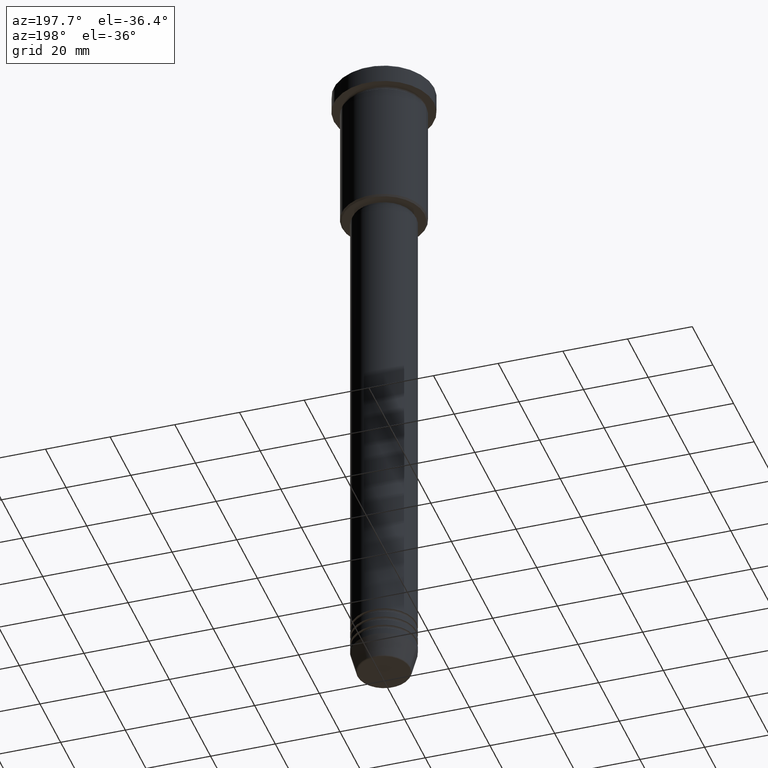
[diagram: clean part render]
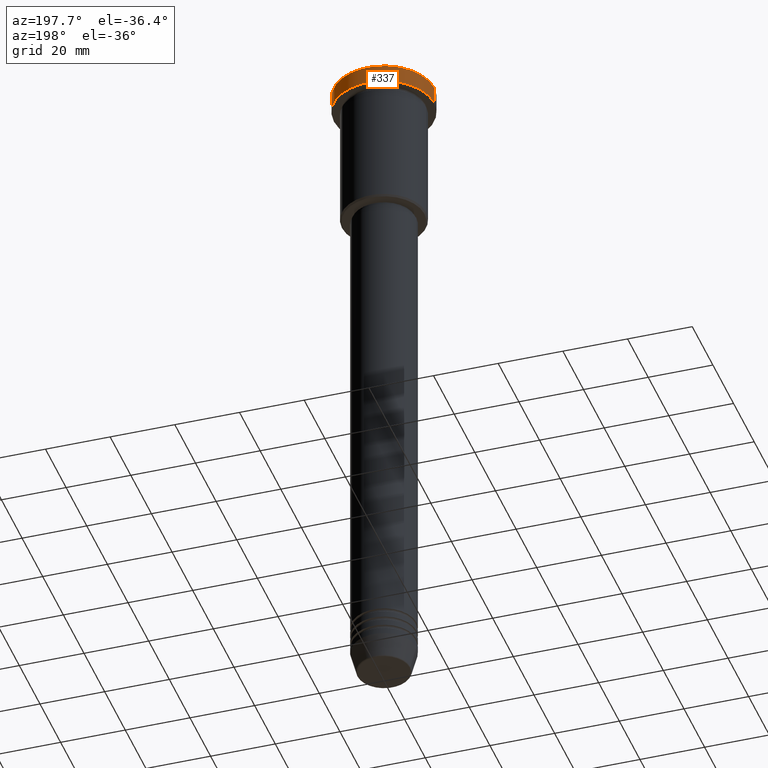
[diagram: same view with one face highlighted and labeled with its STEP entity id]
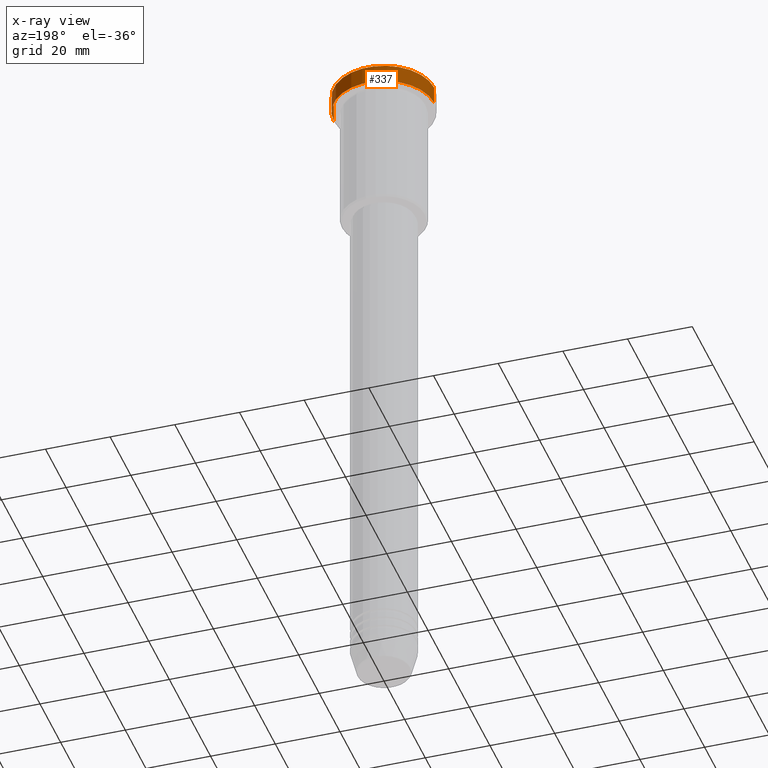
[diagram: x-ray of the same camera — body ghosted, the highlighted face saturated]
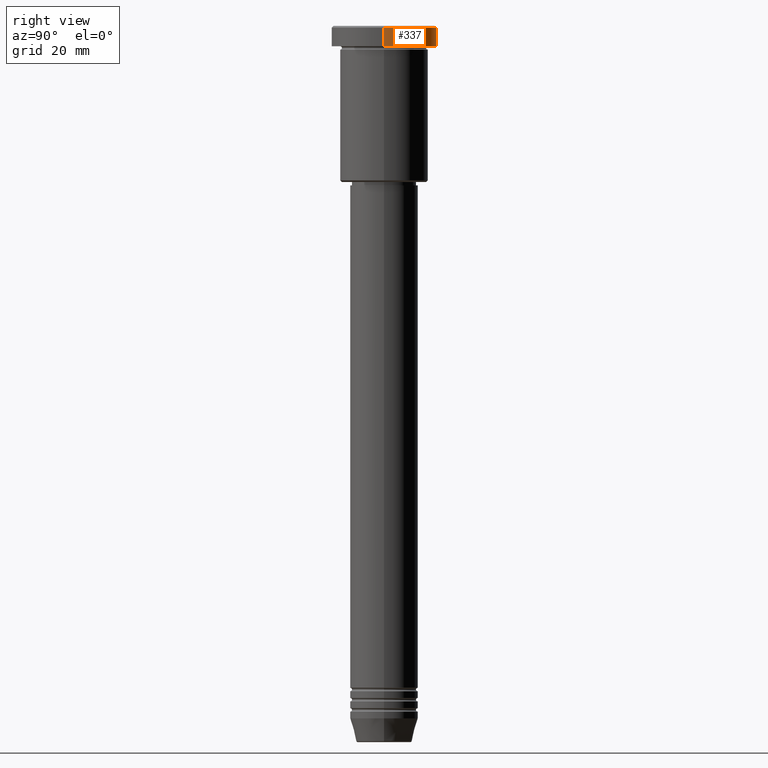
[diagram: same view with one face highlighted and labeled with its STEP entity id]
A machine part, auxiliary view. The second image highlights one B-rep face of the part: STEP entity #337.
The next image is the same camera in x-ray: the body ghosted, the highlighted face saturated — about 0% of this face is hidden behind the body in this view.
A second angle (right view) of the same face is appended — the face is thin or edge-on in the first view.
In plain terms, the highlighted cylindrical surface (partial cylindrical patch) has radius 15.5 mm, axis along (-0, -0, 1).
Its self-contained STEP definition (entity closure, byte-faithful):
#9 = ORIENTED_EDGE ( 'NONE', *, *, #800, .F. ) ;
#56 = DIRECTION ( 'NONE',  ( 1.000000000000000000, 0.000000000000000000, 0.000000000000000000 ) ) ;
#104 = CARTESIAN_POINT ( 'NONE',  ( 15.50000000000000000, 0.000000000000000000, 0.000000000000000000 ) ) ;
#156 = AXIS2_PLACEMENT_3D ( 'NONE', #864, #219, #1132 ) ;
#193 = AXIS2_PLACEMENT_3D ( 'NONE', #941, #317, #868 ) ;
#219 = DIRECTION ( 'NONE',  ( 0.000000000000000000, 0.000000000000000000, -1.000000000000000000 ) ) ;
#314 = EDGE_LOOP ( 'NONE', ( #942, #957, #751, #9 ) ) ;
#316 = CARTESIAN_POINT ( 'NONE',  ( 15.50000000000000000, 0.000000000000000000, -0.4999999999999848455 ) ) ;
#317 = DIRECTION ( 'NONE',  ( -0.000000000000000000, -0.000000000000000000, 1.000000000000000000 ) ) ;
#318 = VERTEX_POINT ( 'NONE', #737 ) ;
#324 = LINE ( 'NONE', #915, #332 ) ;
#332 = VECTOR ( 'NONE', #963, 1000.000000000000000 ) ;
#337 = ADVANCED_FACE ( 'NONE', ( #590 ), #763, .T. ) ;
#371 = CIRCLE ( 'NONE', #683, 15.50000000000000000 ) ;
#479 = EDGE_CURVE ( 'NONE', #740, #764, #625, .T. ) ;
#517 = CARTESIAN_POINT ( 'NONE',  ( 0.000000000000000000, 0.000000000000000000, -5.999999999999995559 ) ) ;
#572 = LINE ( 'NONE', #104, #815 ) ;
#590 = FACE_OUTER_BOUND ( 'NONE', #314, .T. ) ;
#625 = CIRCLE ( 'NONE', #156, 15.50000000000000000 ) ;
#640 = CARTESIAN_POINT ( 'NONE',  ( -15.50000000000000000, 1.898202538678397557E-15, -5.999999999999995559 ) ) ;
#683 = AXIS2_PLACEMENT_3D ( 'NONE', #517, #1092, #56 ) ;
#690 = VERTEX_POINT ( 'NONE', #640 ) ;
#737 = CARTESIAN_POINT ( 'NONE',  ( 15.50000000000000000, 0.000000000000000000, -5.999999999999995559 ) ) ;
#740 = VERTEX_POINT ( 'NONE', #1022 ) ;
#751 = ORIENTED_EDGE ( 'NONE', *, *, #479, .T. ) ;
#763 = CYLINDRICAL_SURFACE ( 'NONE', #193, 15.50000000000000000 ) ;
#764 = VERTEX_POINT ( 'NONE', #316 ) ;
#800 = EDGE_CURVE ( 'NONE', #318, #764, #572, .T. ) ;
#815 = VECTOR ( 'NONE', #845, 1000.000000000000000 ) ;
#845 = DIRECTION ( 'NONE',  ( -0.000000000000000000, -0.000000000000000000, 1.000000000000000000 ) ) ;
#864 = CARTESIAN_POINT ( 'NONE',  ( 0.000000000000000000, 0.000000000000000000, -0.4999999999999848455 ) ) ;
#868 = DIRECTION ( 'NONE',  ( 1.000000000000000000, 0.000000000000000000, 0.000000000000000000 ) ) ;
#915 = CARTESIAN_POINT ( 'NONE',  ( -15.50000000000000000, 1.898202538678397557E-15, 0.000000000000000000 ) ) ;
#941 = CARTESIAN_POINT ( 'NONE',  ( 0.000000000000000000, 0.000000000000000000, 0.000000000000000000 ) ) ;
#942 = ORIENTED_EDGE ( 'NONE', *, *, #1016, .T. ) ;
#957 = ORIENTED_EDGE ( 'NONE', *, *, #1002, .T. ) ;
#963 = DIRECTION ( 'NONE',  ( -0.000000000000000000, -0.000000000000000000, 1.000000000000000000 ) ) ;
#1002 = EDGE_CURVE ( 'NONE', #690, #740, #324, .T. ) ;
#1016 = EDGE_CURVE ( 'NONE', #318, #690, #371, .T. ) ;
#1022 = CARTESIAN_POINT ( 'NONE',  ( -15.50000000000000000, 1.898202538678397557E-15, -0.4999999999999848455 ) ) ;
#1092 = DIRECTION ( 'NONE',  ( -0.000000000000000000, -0.000000000000000000, 1.000000000000000000 ) ) ;
#1132 = DIRECTION ( 'NONE',  ( 1.000000000000000000, 0.000000000000000000, 0.000000000000000000 ) ) ;